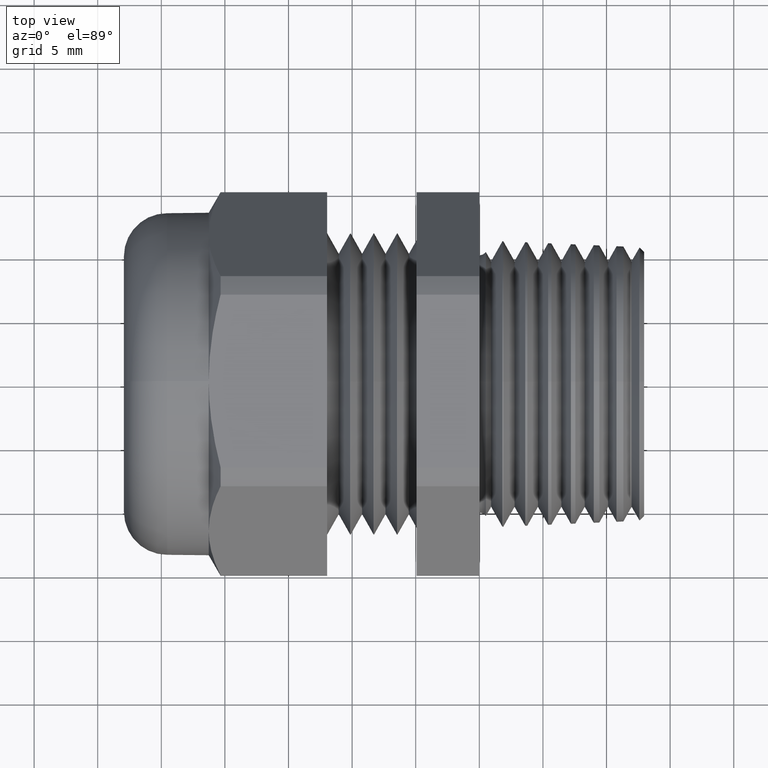
[diagram: clean part render]
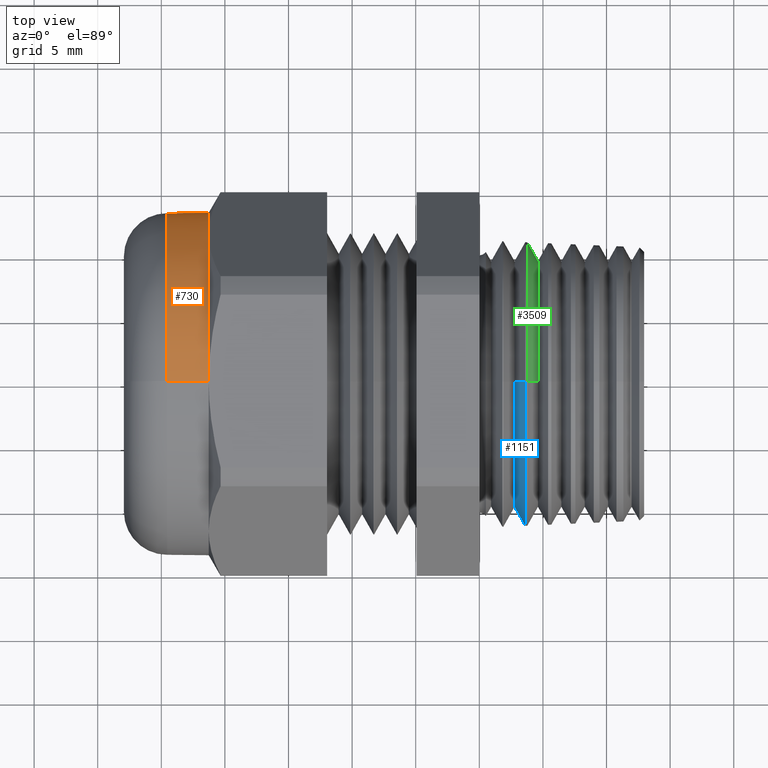
[diagram: same view with three faces highlighted in distinct colors, each labeled with its STEP entity id]
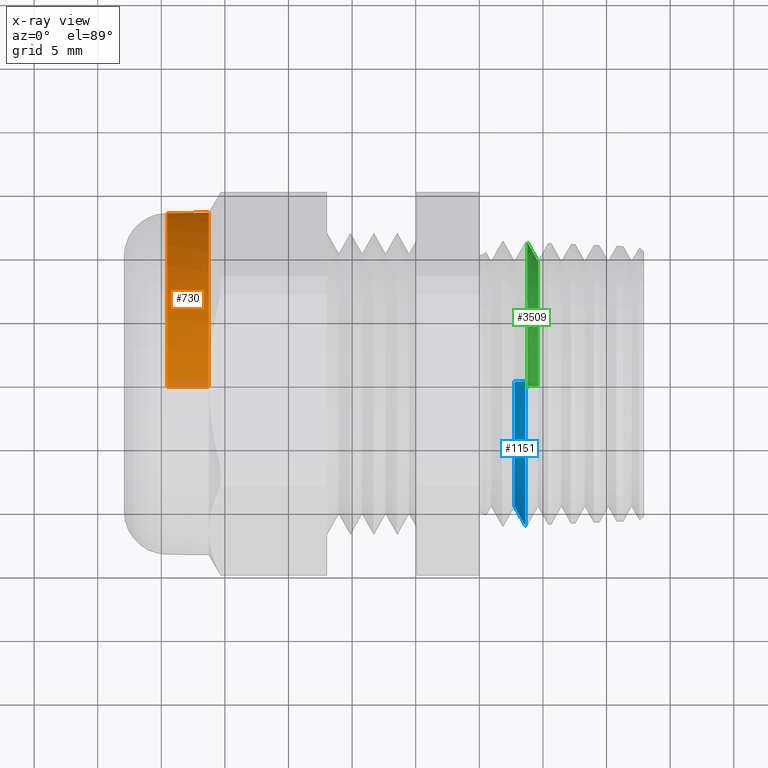
[diagram: x-ray of the same camera — body ghosted, the three highlighted faces saturated]
A machine part, top view with three faces highlighted in distinct colors.
The next image is the same camera in x-ray (body ghosted, the three faces saturated) — at least one of them is partly hidden behind the body in this view.
Their STEP definitions:

[orange] entity #730 — the highlighted cylindrical surface (partial cylindrical patch) has radius 13.462 mm, axis along (-1, 0, 0).
#730 = ADVANCED_FACE ( 'NONE', ( #2593 ), #2591, .T. ) ;
#731 = EDGE_LOOP ( 'NONE', ( #837, #843, #845, #766, #835, #778 ) ) ;
#765 = VERTEX_POINT ( 'NONE', #2710 ) ;
#766 = ORIENTED_EDGE ( 'NONE', *, *, #767, .F. ) ;
#767 = EDGE_CURVE ( 'NONE', #834, #833, #2709, .T. ) ;
#777 = VERTEX_POINT ( 'NONE', #2685 ) ;
#778 = ORIENTED_EDGE ( 'NONE', *, *, #779, .T. ) ;
#779 = EDGE_CURVE ( 'NONE', #777, #839, #2745, .T. ) ;
#833 = VERTEX_POINT ( 'NONE', #2836 ) ;
#834 = VERTEX_POINT ( 'NONE', #2835 ) ;
#835 = ORIENTED_EDGE ( 'NONE', *, *, #836, .T. ) ;
#836 = EDGE_CURVE ( 'NONE', #834, #777, #2834, .T. ) ;
#837 = ORIENTED_EDGE ( 'NONE', *, *, #838, .T. ) ;
#838 = EDGE_CURVE ( 'NONE', #839, #840, #2829, .T. ) ;
#839 = VERTEX_POINT ( 'NONE', #2824 ) ;
#840 = VERTEX_POINT ( 'NONE', #2823 ) ;
#843 = ORIENTED_EDGE ( 'NONE', *, *, #844, .T. ) ;
#844 = EDGE_CURVE ( 'NONE', #840, #765, #2817, .T. ) ;
#845 = ORIENTED_EDGE ( 'NONE', *, *, #849, .T. ) ;
#849 = EDGE_CURVE ( 'NONE', #765, #833, #2871, .T. ) ;
#2590 = CARTESIAN_POINT ( 'NONE',  ( -0.7238591030180623300, 0.0000000000000000000, 0.0000000000000000000 ) ) ;
#2591 = CYLINDRICAL_SURFACE ( 'NONE', #2652, 0.5299999999999998000 ) ;
#2592 = DIRECTION ( 'NONE',  ( -1.000000000000000000, 0.0000000000000000000, 0.0000000000000000000 ) ) ;
#2593 = FACE_OUTER_BOUND ( 'NONE', #731, .T. ) ;
#2651 = DIRECTION ( 'NONE',  ( 0.0000000000000000000, 0.0000000000000000000, 1.000000000000000000 ) ) ;
#2652 = AXIS2_PLACEMENT_3D ( 'NONE', #2590, #2592, #2651 ) ;
#2685 = CARTESIAN_POINT ( 'NONE',  ( -0.8375000000000000200, 0.4589934640057524200, 0.2650000000000000100 ) ) ;
#2706 = DIRECTION ( 'NONE',  ( -1.000000000000000000, 0.0000000000000000000, 0.0000000000000000000 ) ) ;
#2707 = VECTOR ( 'NONE', #2706, 39.37007874015748100 ) ;
#2708 = CARTESIAN_POINT ( 'NONE',  ( -0.7238591030180623300, 0.0000000000000000000, 0.5299999999999998000 ) ) ;
#2709 = LINE ( 'NONE', #2708, #2707 ) ;
#2710 = CARTESIAN_POINT ( 'NONE',  ( -0.9663999999999998100, 6.490628035480970000E-017, -0.5299999999999998000 ) ) ;
#2741 = DIRECTION ( 'NONE',  ( 0.0000000000000000000, 0.0000000000000000000, 1.000000000000000000 ) ) ;
#2742 = DIRECTION ( 'NONE',  ( -1.000000000000000000, 0.0000000000000000000, 0.0000000000000000000 ) ) ;
#2743 = CARTESIAN_POINT ( 'NONE',  ( -0.8375000000000000200, 0.0000000000000000000, 0.0000000000000000000 ) ) ;
#2744 = AXIS2_PLACEMENT_3D ( 'NONE', #2743, #2742, #2741 ) ;
#2745 = CIRCLE ( 'NONE', #2744, 0.5299999999999998000 ) ;
#2814 = DIRECTION ( 'NONE',  ( -1.000000000000000000, 0.0000000000000000000, 0.0000000000000000000 ) ) ;
#2815 = VECTOR ( 'NONE', #2814, 39.37007874015748100 ) ;
#2816 = CARTESIAN_POINT ( 'NONE',  ( -0.7238591030180623300, 6.490628035480970000E-017, -0.5299999999999998000 ) ) ;
#2817 = LINE ( 'NONE', #2816, #2815 ) ;
#2823 = CARTESIAN_POINT ( 'NONE',  ( -0.8375000000000000200, 0.0000000000000000000, -0.5299999999999999200 ) ) ;
#2824 = CARTESIAN_POINT ( 'NONE',  ( -0.8375000000000000200, 0.4589934640057525800, -0.2649999999999997900 ) ) ;
#2825 = DIRECTION ( 'NONE',  ( 0.0000000000000000000, 0.0000000000000000000, 1.000000000000000000 ) ) ;
#2826 = DIRECTION ( 'NONE',  ( -1.000000000000000000, 0.0000000000000000000, 0.0000000000000000000 ) ) ;
#2827 = CARTESIAN_POINT ( 'NONE',  ( -0.8375000000000000200, 0.0000000000000000000, 0.0000000000000000000 ) ) ;
#2828 = AXIS2_PLACEMENT_3D ( 'NONE', #2827, #2826, #2825 ) ;
#2829 = CIRCLE ( 'NONE', #2828, 0.5299999999999998000 ) ;
#2830 = DIRECTION ( 'NONE',  ( 0.0000000000000000000, 0.0000000000000000000, 1.000000000000000000 ) ) ;
#2831 = DIRECTION ( 'NONE',  ( -1.000000000000000000, 0.0000000000000000000, 0.0000000000000000000 ) ) ;
#2832 = CARTESIAN_POINT ( 'NONE',  ( -0.8375000000000000200, 0.0000000000000000000, 0.0000000000000000000 ) ) ;
#2833 = AXIS2_PLACEMENT_3D ( 'NONE', #2832, #2831, #2830 ) ;
#2834 = CIRCLE ( 'NONE', #2833, 0.5299999999999998000 ) ;
#2835 = CARTESIAN_POINT ( 'NONE',  ( -0.8375000000000000200, 0.0000000000000000000, 0.5299999999999999200 ) ) ;
#2836 = CARTESIAN_POINT ( 'NONE',  ( -0.9663999999999998100, 0.0000000000000000000, 0.5299999999999998000 ) ) ;
#2867 = DIRECTION ( 'NONE',  ( 0.0000000000000000000, 0.0000000000000000000, -1.000000000000000000 ) ) ;
#2868 = DIRECTION ( 'NONE',  ( 1.000000000000000000, 0.0000000000000000000, 0.0000000000000000000 ) ) ;
#2869 = CARTESIAN_POINT ( 'NONE',  ( -0.9663999999999998100, 0.0000000000000000000, 0.0000000000000000000 ) ) ;
#2870 = AXIS2_PLACEMENT_3D ( 'NONE', #2869, #2868, #2867 ) ;
#2871 = CIRCLE ( 'NONE', #2870, 0.5299999999999998000 ) ;

[blue] entity #1151 — the highlighted conical surface has half-angle 60 deg.
#27 = EDGE_CURVE ( 'NONE', #32, #29, #1237, .T. ) ;
#29 = VERTEX_POINT ( 'NONE', #1227 ) ;
#31 = VERTEX_POINT ( 'NONE', #1226 ) ;
#32 = VERTEX_POINT ( 'NONE', #1225 ) ;
#33 = VERTEX_POINT ( 'NONE', #1224 ) ;
#37 = EDGE_CURVE ( 'NONE', #31, #33, #1223, .T. ) ;
#488 = EDGE_CURVE ( 'NONE', #29, #33, #2086, .T. ) ;
#1078 = EDGE_LOOP ( 'NONE', ( #1079, #1080, #1081, #1082 ) ) ;
#1079 = ORIENTED_EDGE ( 'NONE', *, *, #37, .F. ) ;
#1080 = ORIENTED_EDGE ( 'NONE', *, *, #1098, .F. ) ;
#1081 = ORIENTED_EDGE ( 'NONE', *, *, #27, .T. ) ;
#1082 = ORIENTED_EDGE ( 'NONE', *, *, #488, .T. ) ;
#1098 = EDGE_CURVE ( 'NONE', #32, #31, #3187, .T. ) ;
#1151 = ADVANCED_FACE ( 'NONE', ( #3260 ), #3259, .T. ) ;
#1223 = LINE ( 'NONE', #1278, #1277 ) ;
#1224 = CARTESIAN_POINT ( 'NONE',  ( 0.1421897549304330400, 0.0000000000000000000, 0.4387918612278070600 ) ) ;
#1225 = CARTESIAN_POINT ( 'NONE',  ( 0.1091012984751485400, 5.040872161874179900E-017, -0.3814809735032225200 ) ) ;
#1226 = CARTESIAN_POINT ( 'NONE',  ( 0.1091012984751485400, 0.0000000000000000000, 0.3814809735032225200 ) ) ;
#1227 = CARTESIAN_POINT ( 'NONE',  ( 0.1421897549304330400, 5.373650483445435200E-017, -0.4387918612278070600 ) ) ;
#1234 = DIRECTION ( 'NONE',  ( 0.4999999999999976700, 0.0000000000000000000, -0.8660254037844400400 ) ) ;
#1235 = VECTOR ( 'NONE', #1234, 39.37007874015748100 ) ;
#1236 = CARTESIAN_POINT ( 'NONE',  ( 0.1091012984751485400, 0.0000000000000000000, -0.3814809735032225200 ) ) ;
#1237 = LINE ( 'NONE', #1236, #1235 ) ;
#1276 = DIRECTION ( 'NONE',  ( 0.4999999999999976700, 1.060575238724908600E-016, 0.8660254037844400400 ) ) ;
#1277 = VECTOR ( 'NONE', #1276, 39.37007874015748100 ) ;
#1278 = CARTESIAN_POINT ( 'NONE',  ( 0.1091012984751485400, 4.671794531363377000E-017, 0.3814809735032225200 ) ) ;
#2082 = DIRECTION ( 'NONE',  ( 0.0000000000000000000, 0.0000000000000000000, -1.000000000000000000 ) ) ;
#2083 = DIRECTION ( 'NONE',  ( -1.000000000000000000, 0.0000000000000000000, 0.0000000000000000000 ) ) ;
#2084 = CARTESIAN_POINT ( 'NONE',  ( 0.1421897549304330400, 0.0000000000000000000, 0.0000000000000000000 ) ) ;
#2085 = AXIS2_PLACEMENT_3D ( 'NONE', #2084, #2083, #2082 ) ;
#2086 = CIRCLE ( 'NONE', #2085, 0.4387918612278070000 ) ;
#3184 = DIRECTION ( 'NONE',  ( 0.0000000000000000000, 0.0000000000000000000, 1.000000000000000000 ) ) ;
#3185 = DIRECTION ( 'NONE',  ( -1.000000000000000000, 0.0000000000000000000, 0.0000000000000000000 ) ) ;
#3186 = AXIS2_PLACEMENT_3D ( 'NONE', #3191, #3185, #3184 ) ;
#3187 = CIRCLE ( 'NONE', #3186, 0.3814809735032225200 ) ;
#3191 = CARTESIAN_POINT ( 'NONE',  ( 0.1091012984751485400, 0.0000000000000000000, 0.0000000000000000000 ) ) ;
#3254 = DIRECTION ( 'NONE',  ( 0.0000000000000000000, 0.0000000000000000000, -1.000000000000000000 ) ) ;
#3255 = DIRECTION ( 'NONE',  ( 1.000000000000000000, 0.0000000000000000000, 0.0000000000000000000 ) ) ;
#3256 = CARTESIAN_POINT ( 'NONE',  ( 0.1091012984751485400, 0.0000000000000000000, 0.0000000000000000000 ) ) ;
#3257 = AXIS2_PLACEMENT_3D ( 'NONE', #3256, #3255, #3254 ) ;
#3259 = CONICAL_SURFACE ( 'NONE', #3257, 0.3814809735032225200, 1.047197551196600500 ) ;
#3260 = FACE_OUTER_BOUND ( 'NONE', #1078, .T. ) ;

[green] entity #3509 — the highlighted conical surface has half-angle 60 deg.
#285 = EDGE_CURVE ( 'NONE', #286, #287, #1719, .T. ) ;
#286 = VERTEX_POINT ( 'NONE', #1715 ) ;
#287 = VERTEX_POINT ( 'NONE', #1714 ) ;
#307 = EDGE_CURVE ( 'NONE', #287, #308, #1744, .T. ) ;
#308 = VERTEX_POINT ( 'NONE', #1740 ) ;
#309 = ORIENTED_EDGE ( 'NONE', *, *, #310, .T. ) ;
#310 = EDGE_CURVE ( 'NONE', #308, #311, #1739, .T. ) ;
#311 = VERTEX_POINT ( 'NONE', #1734 ) ;
#312 = ORIENTED_EDGE ( 'NONE', *, *, #313, .F. ) ;
#313 = EDGE_CURVE ( 'NONE', #286, #311, #1733, .T. ) ;
#1714 = CARTESIAN_POINT ( 'NONE',  ( 0.1815298699037199700, 5.021007929963809400E-017, -0.3814809735032225200 ) ) ;
#1715 = CARTESIAN_POINT ( 'NONE',  ( 0.1815298699037199700, 0.0000000000000000000, 0.3814809735032225200 ) ) ;
#1716 = DIRECTION ( 'NONE',  ( 0.0000000000000000000, 0.0000000000000000000, 1.000000000000000000 ) ) ;
#1717 = DIRECTION ( 'NONE',  ( -1.000000000000000000, 0.0000000000000000000, 0.0000000000000000000 ) ) ;
#1718 = AXIS2_PLACEMENT_3D ( 'NONE', #1725, #1717, #1716 ) ;
#1719 = CIRCLE ( 'NONE', #1718, 0.3814809735032225200 ) ;
#1725 = CARTESIAN_POINT ( 'NONE',  ( 0.1815298699037199700, 0.0000000000000000000, 0.0000000000000000000 ) ) ;
#1730 = DIRECTION ( 'NONE',  ( -0.4999999999999977200, 0.0000000000000000000, 0.8660254037844398200 ) ) ;
#1731 = VECTOR ( 'NONE', #1730, 39.37007874015748100 ) ;
#1732 = CARTESIAN_POINT ( 'NONE',  ( 0.1448571428571427100, 0.0000000000000000000, 0.4450000000000000100 ) ) ;
#1733 = LINE ( 'NONE', #1732, #1731 ) ;
#1734 = CARTESIAN_POINT ( 'NONE',  ( 0.1486030783052023600, 0.0000000000000000000, 0.4385118494820873800 ) ) ;
#1735 = DIRECTION ( 'NONE',  ( 0.0000000000000000000, 0.0000000000000000000, 1.000000000000000000 ) ) ;
#1736 = DIRECTION ( 'NONE',  ( 1.000000000000000000, 0.0000000000000000000, 0.0000000000000000000 ) ) ;
#1737 = CARTESIAN_POINT ( 'NONE',  ( 0.1486030783052023600, 0.0000000000000000000, 0.0000000000000000000 ) ) ;
#1738 = AXIS2_PLACEMENT_3D ( 'NONE', #1737, #1736, #1735 ) ;
#1739 = CIRCLE ( 'NONE', #1738, 0.4385118494820873800 ) ;
#1740 = CARTESIAN_POINT ( 'NONE',  ( 0.1486030783052023600, 5.371935906004839200E-017, -0.4385118494820873800 ) ) ;
#1741 = DIRECTION ( 'NONE',  ( -0.4999999999999977200, 1.060575238724908500E-016, -0.8660254037844398200 ) ) ;
#1742 = VECTOR ( 'NONE', #1741, 39.37007874015748100 ) ;
#1743 = CARTESIAN_POINT ( 'NONE',  ( 0.1448571428571427100, 5.449678256205722000E-017, -0.4450000000000000100 ) ) ;
#1744 = LINE ( 'NONE', #1743, #1742 ) ;
#3334 = DIRECTION ( 'NONE',  ( 0.0000000000000000000, 0.0000000000000000000, 1.000000000000000000 ) ) ;
#3335 = DIRECTION ( 'NONE',  ( -1.000000000000000000, 0.0000000000000000000, 0.0000000000000000000 ) ) ;
#3336 = CARTESIAN_POINT ( 'NONE',  ( 0.1448571428571427100, 0.0000000000000000000, 0.0000000000000000000 ) ) ;
#3337 = AXIS2_PLACEMENT_3D ( 'NONE', #3336, #3335, #3334 ) ;
#3338 = CONICAL_SURFACE ( 'NONE', #3337, 0.4450000000000000100, 1.047197551196600300 ) ;
#3339 = FACE_OUTER_BOUND ( 'NONE', #3475, .T. ) ;
#3473 = ORIENTED_EDGE ( 'NONE', *, *, #307, .T. ) ;
#3474 = ORIENTED_EDGE ( 'NONE', *, *, #285, .T. ) ;
#3475 = EDGE_LOOP ( 'NONE', ( #3474, #3473, #309, #312 ) ) ;
#3509 = ADVANCED_FACE ( 'NONE', ( #3339 ), #3338, .T. ) ;